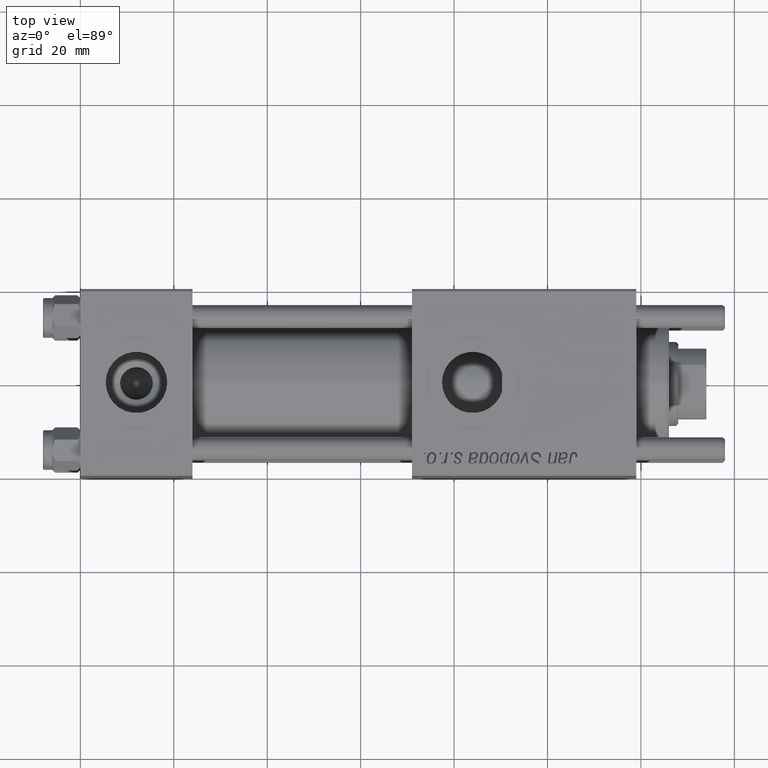
[diagram: clean part render]
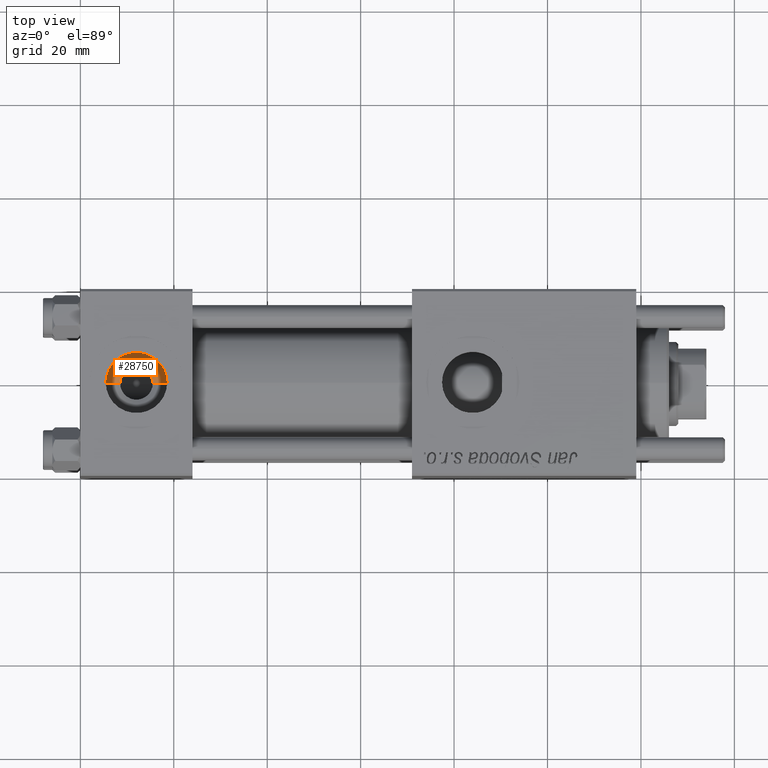
[diagram: same view with one face highlighted and labeled with its STEP entity id]
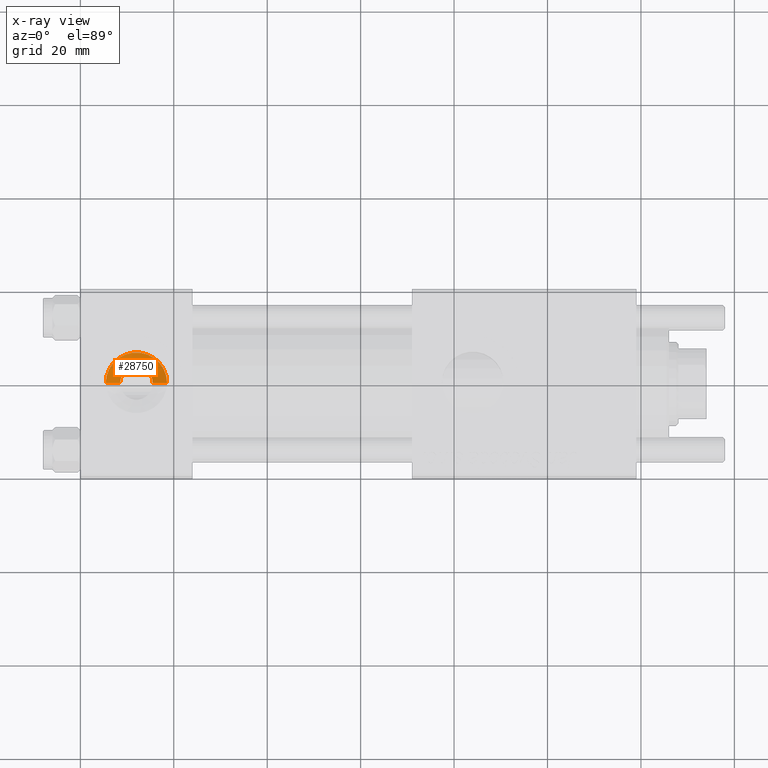
[diagram: x-ray of the same camera — body ghosted, the highlighted face saturated]
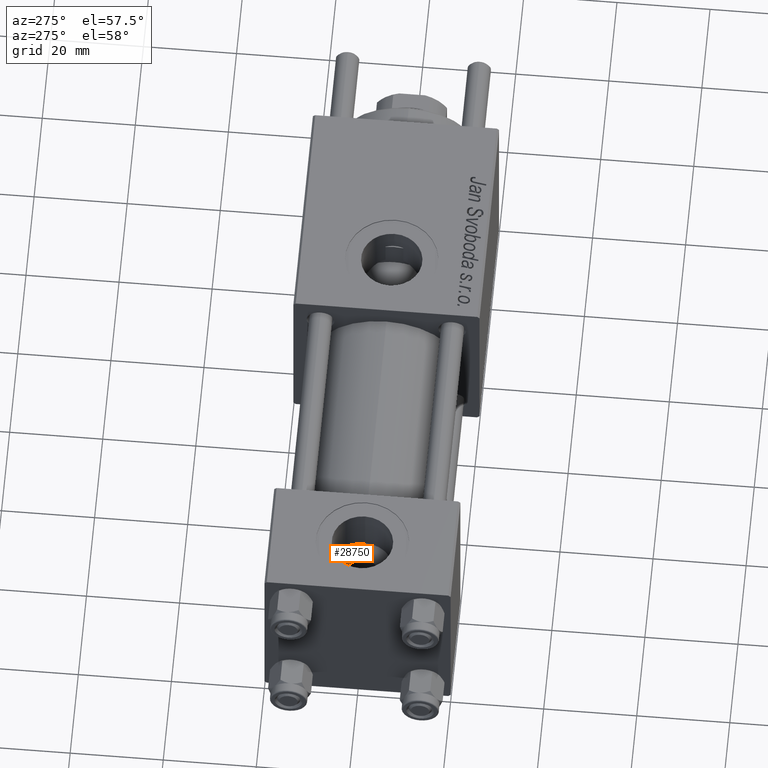
[diagram: same view with one face highlighted and labeled with its STEP entity id]
A machine part, top view. The second image highlights one B-rep face of the part: STEP entity #28750.
The next image is the same camera in x-ray: the body ghosted, the highlighted face saturated — about 0% of this face is hidden behind the body in this view.
A second angle (auxiliary view) of the same face is appended — the face is thin or edge-on in the first view.
In plain terms, the highlighted conical surface has half-angle 60.452 deg.
Its self-contained STEP definition (entity closure, byte-faithful):
#2246 = CARTESIAN_POINT ( 'NONE',  ( 18.57999999999999829, 1.540743955509788682E-30, 9.165987261146492315 ) ) ;
#2925 = AXIS2_PLACEMENT_3D ( 'NONE', #17213, #52163, #47021 ) ;
#3010 = VERTEX_POINT ( 'NONE', #2246 ) ;
#4586 = AXIS2_PLACEMENT_3D ( 'NONE', #36494, #6130, #48062 ) ;
#6130 = DIRECTION ( 'NONE',  ( -0.000000000000000000, -0.000000000000000000, -1.000000000000000000 ) ) ;
#7011 = DIRECTION ( 'NONE',  ( 1.000000000000000000, 0.000000000000000000, 0.000000000000000000 ) ) ;
#7129 = CARTESIAN_POINT ( 'NONE',  ( 5.420000000000000817, 8.058175938389596335E-16, 9.165987261146492315 ) ) ;
#7851 = CONICAL_SURFACE ( 'NONE', #43503, 3.499999999999999556, 1.055086625138361267 ) ;
#11042 = EDGE_CURVE ( 'NONE', #34080, #28210, #23996, .T. ) ;
#11314 = DIRECTION ( 'NONE',  ( 0.000000000000000000, 0.000000000000000000, 1.000000000000000000 ) ) ;
#11336 = CARTESIAN_POINT ( 'NONE',  ( 15.50000000000000000, 1.540743955509788682E-30, 7.419999999999996376 ) ) ;
#11870 = CARTESIAN_POINT ( 'NONE',  ( 12.00000000000000000, 1.540743955509788682E-30, 7.419999999999996376 ) ) ;
#14137 = ORIENTED_EDGE ( 'NONE', *, *, #49780, .F. ) ;
#16469 = EDGE_CURVE ( 'NONE', #28210, #54187, #25025, .T. ) ;
#17213 = CARTESIAN_POINT ( 'NONE',  ( 12.00000000000000000, 1.540743955509788682E-30, 7.419999999999996376 ) ) ;
#21443 = EDGE_LOOP ( 'NONE', ( #38171, #24871, #26559, #14137 ) ) ;
#23996 = CIRCLE ( 'NONE', #2925, 3.499999999999999556 ) ;
#24871 = ORIENTED_EDGE ( 'NONE', *, *, #11042, .F. ) ;
#25025 = LINE ( 'NONE', #50811, #50535 ) ;
#26559 = ORIENTED_EDGE ( 'NONE', *, *, #46319, .T. ) ;
#28210 = VERTEX_POINT ( 'NONE', #48788 ) ;
#28750 = ADVANCED_FACE ( 'NONE', ( #33063 ), #7851, .F. ) ;
#32116 = CARTESIAN_POINT ( 'NONE',  ( 15.50000000000000000, 1.540743955509788682E-30, 7.419999999999996376 ) ) ;
#33063 = FACE_OUTER_BOUND ( 'NONE', #21443, .T. ) ;
#34080 = VERTEX_POINT ( 'NONE', #32116 ) ;
#35585 = VECTOR ( 'NONE', #50278, 1000.000000000000000 ) ;
#36494 = CARTESIAN_POINT ( 'NONE',  ( 12.00000000000000000, 1.540743955509788682E-30, 9.165987261146492315 ) ) ;
#38171 = ORIENTED_EDGE ( 'NONE', *, *, #16469, .F. ) ;
#43503 = AXIS2_PLACEMENT_3D ( 'NONE', #11870, #11314, #7011 ) ;
#45428 = LINE ( 'NONE', #11336, #35585 ) ;
#46319 = EDGE_CURVE ( 'NONE', #34080, #3010, #45428, .T. ) ;
#46521 = DIRECTION ( 'NONE',  ( -0.8699429503561852961, 1.065372849594507103E-16, 0.4931523731318503412 ) ) ;
#47021 = DIRECTION ( 'NONE',  ( 1.000000000000000000, 0.000000000000000000, 0.000000000000000000 ) ) ;
#48062 = DIRECTION ( 'NONE',  ( 1.000000000000000000, 0.000000000000000000, 0.000000000000000000 ) ) ;
#48788 = CARTESIAN_POINT ( 'NONE',  ( 8.500000000000000000, 4.286263797015752865E-16, 7.419999999999996376 ) ) ;
#49780 = EDGE_CURVE ( 'NONE', #54187, #3010, #54002, .T. ) ;
#50278 = DIRECTION ( 'NONE',  ( 0.8699429503561852961, 0.000000000000000000, 0.4931523731318503412 ) ) ;
#50535 = VECTOR ( 'NONE', #46521, 1000.000000000000000 ) ;
#50811 = CARTESIAN_POINT ( 'NONE',  ( 8.500000000000000000, 4.286263797015751879E-16, 7.419999999999996376 ) ) ;
#52163 = DIRECTION ( 'NONE',  ( 0.000000000000000000, 0.000000000000000000, 1.000000000000000000 ) ) ;
#54002 = CIRCLE ( 'NONE', #4586, 6.579999999999999183 ) ;
#54187 = VERTEX_POINT ( 'NONE', #7129 ) ;